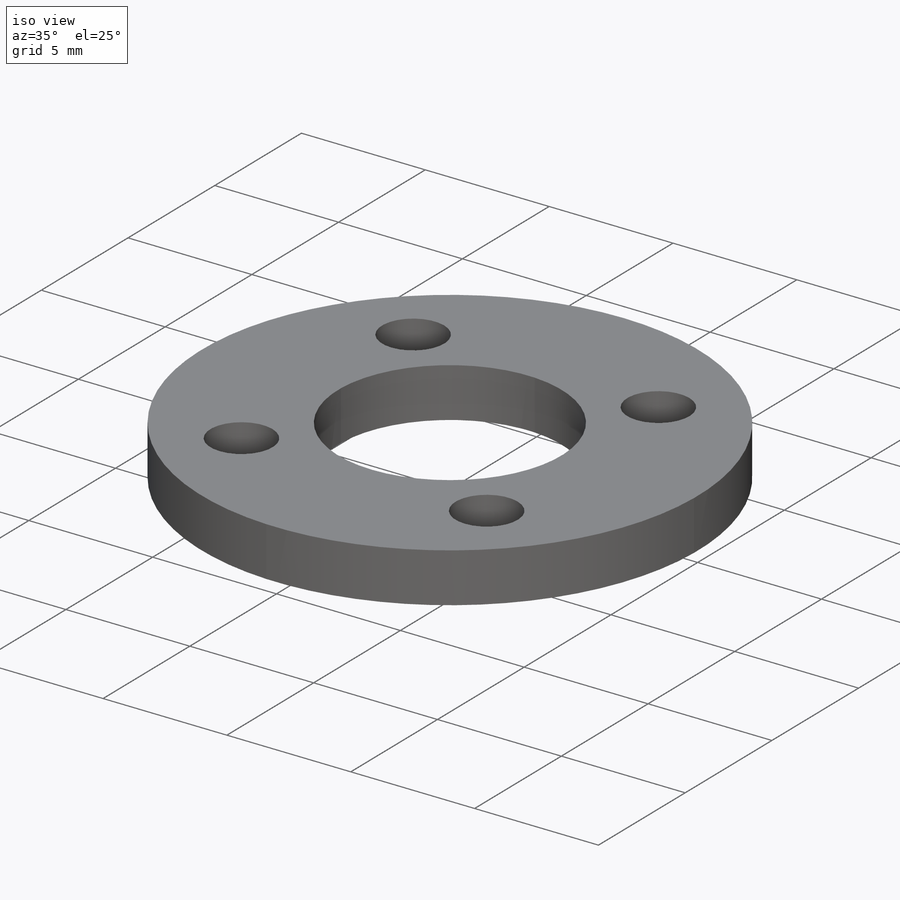
[diagram: iso view]
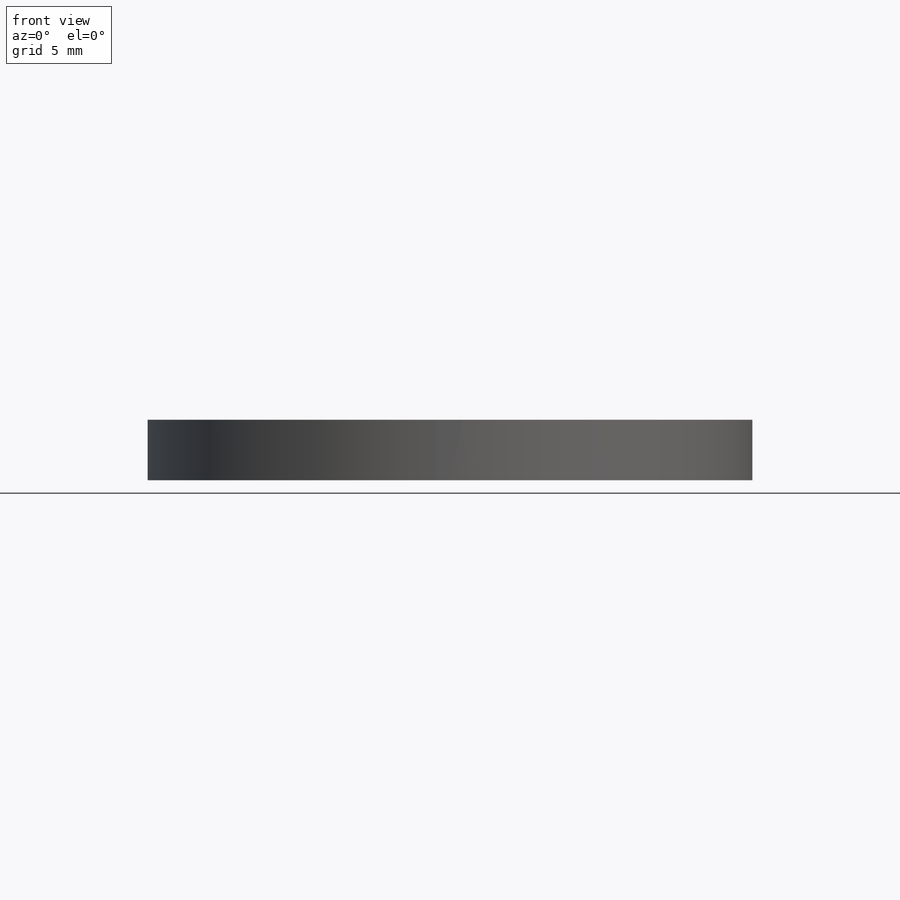
[diagram: front view]
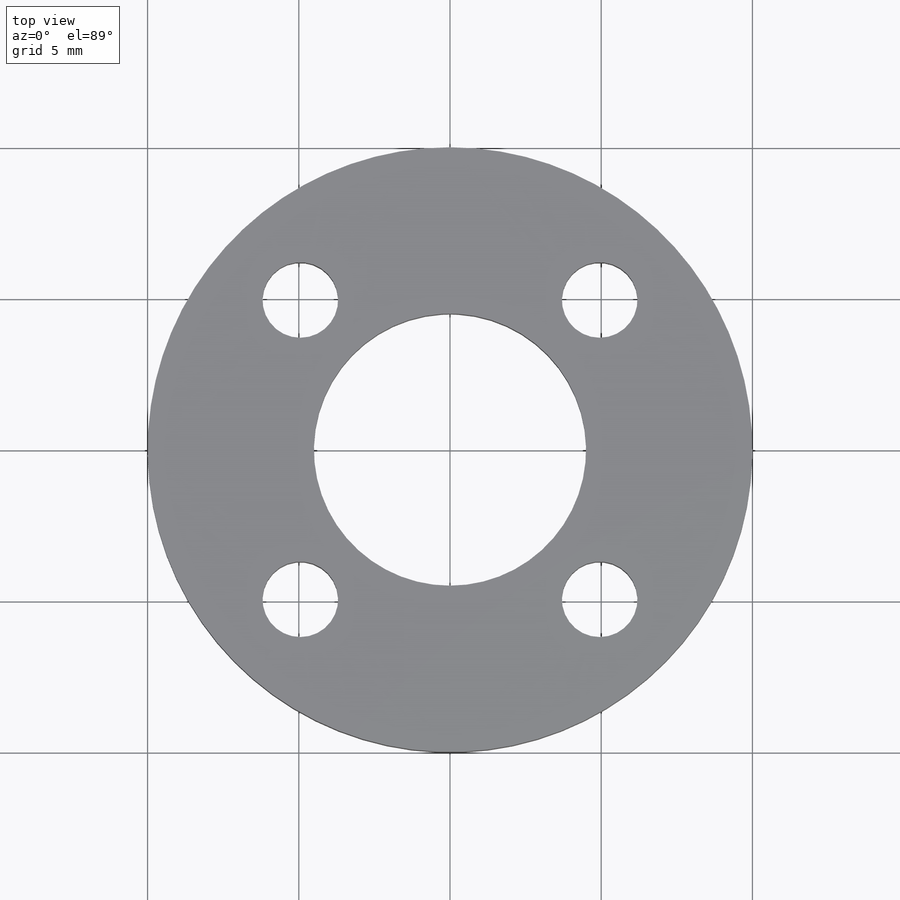
[diagram: top view]
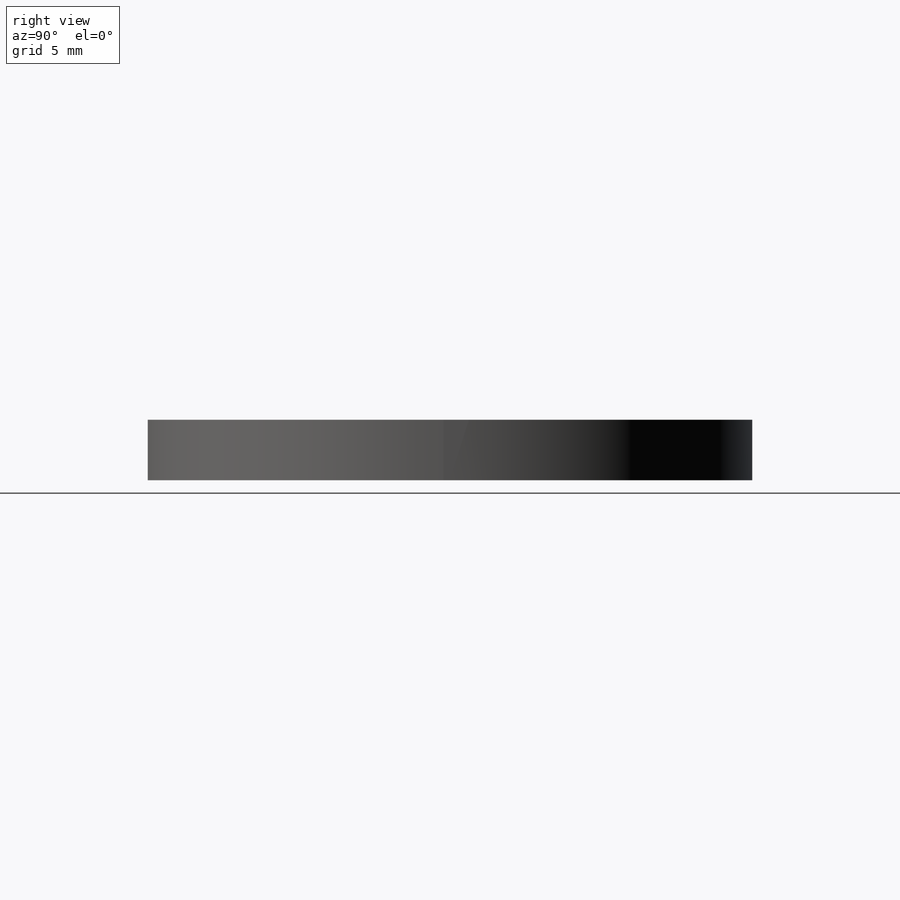
[diagram: right view]
SOLIDWORKS PART (.sldprt)
format: sldprt  version: not decoded by parser v0  size: 553,472 bytes
history: native  units: mm
features: sketch x9, plane x3, extrude x2, cut_extrude x2, hole x2, material x1, revolve x1, chamfer x1 (+10 scaffold rows collapsed)
feature tree (31):
  scaffold x10  (default folders/planes/origin — collapsed)
  material  "Материал <не указан>"
  plane  "Спереди"
  plane  "Сверху"
  plane  "Справа"
  sketch  "Эскиз1"
  revolve  "Повернуть1"  Angle=360deg
  sketch  "Эскиз2"
  extrude  "Бобышка-Вытянуть1"  Depth=2.5mm
  sketch  "Эскиз3"
  cut_extrude  "Вырез-Вытянуть1"  Depth=3.6mm
  hole  "Диаметр отверстия Ø3.0 (3)1"  [1 undecoded]
  sketch  "Эскиз5"
  sketch  "Эскиз4"  dims[hole-wizard template sketch: 59 standard entries collapsed; hole parameters kept: c18.Диаметр сквозного отверстия=3.0mm c18.Глубина сквозного отверстия=0.9mm]
  hole  "Диаметр отверстия Ø2.5 (2.5)1"  [1 undecoded]
  sketch  "Эскиз7"
  sketch  "Эскиз6"  dims[hole-wizard template sketch: 59 standard entries collapsed; hole parameters kept: c18.Диаметр сквозного отверстия=2.5mm c18.Глубина сквозного отверстия=2.0mm]
  chamfer  "Фаска1"  Distance=0.14056mm Angle=43.076923deg
  sketch  "Эскиз8"
  cut_extrude  "Вырез-Вытянуть2"  [1 undecoded]
  sketch  "Эскиз9"  dims[D1=6.3mm]
  extrude  "Бобышка-Вытянуть2"  [1 undecoded]
decode coverage: 7 of 17 modeling features carry decoded parameters
note: ~ marks probable driven/reference dimensions
note: 4 parameter values undecoded
summary: no parameter record found for 4 features
note: suppression state not decoded; provenance and decode notes live in map.json
